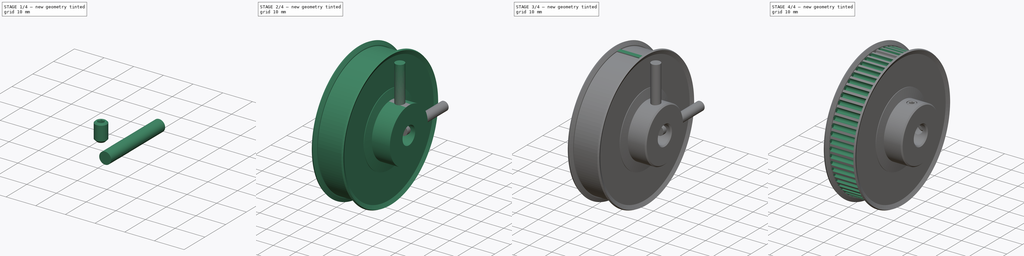
[diagram: build sequence overview — one tinted view per stage of 4, left to right]
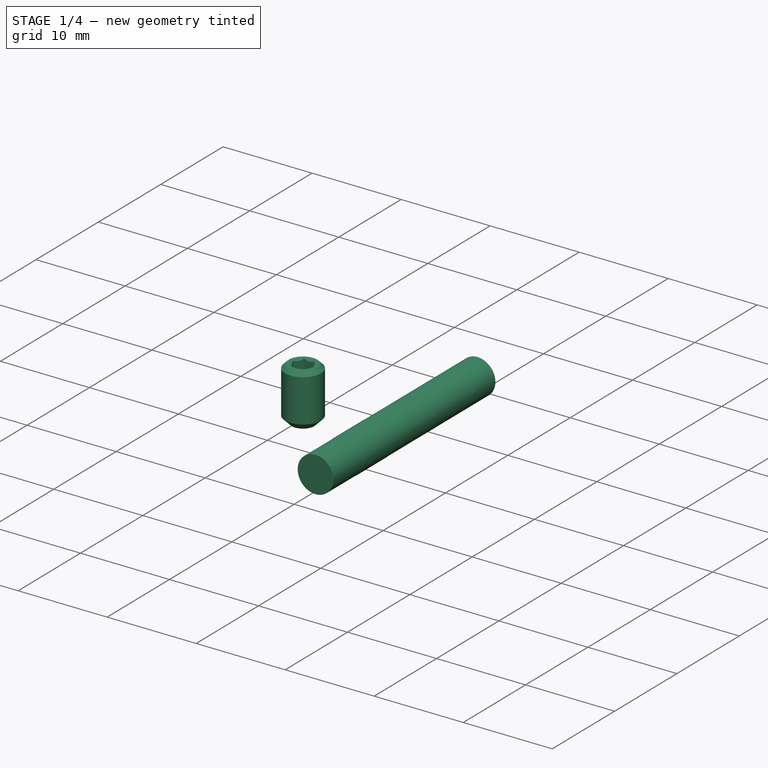
[diagram: stage 1 of 4 — iso view after this stage's code; geometry added in this stage tinted green]
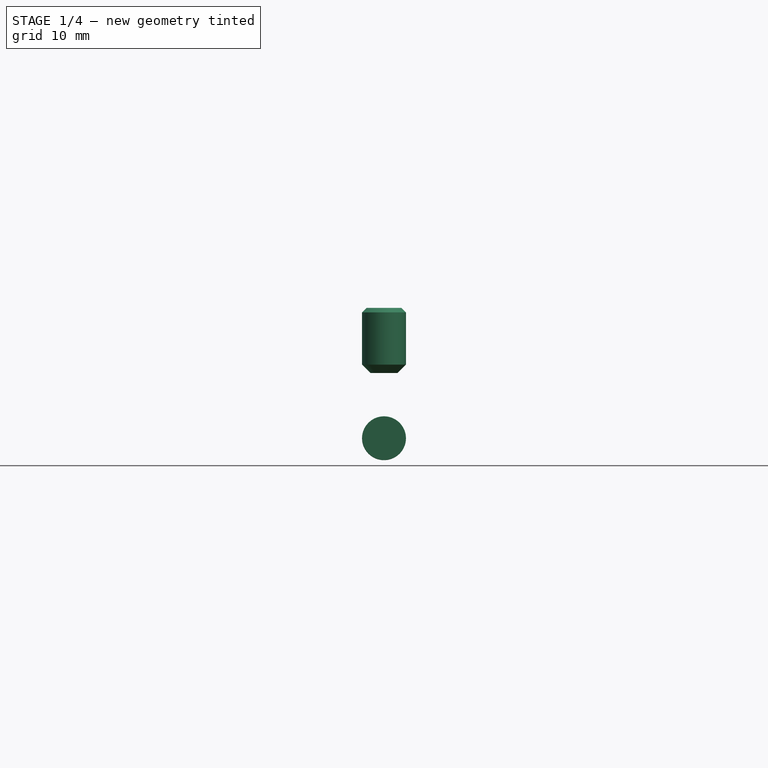
[diagram: stage 1 of 4 — front view after this stage's code; geometry added in this stage tinted green]
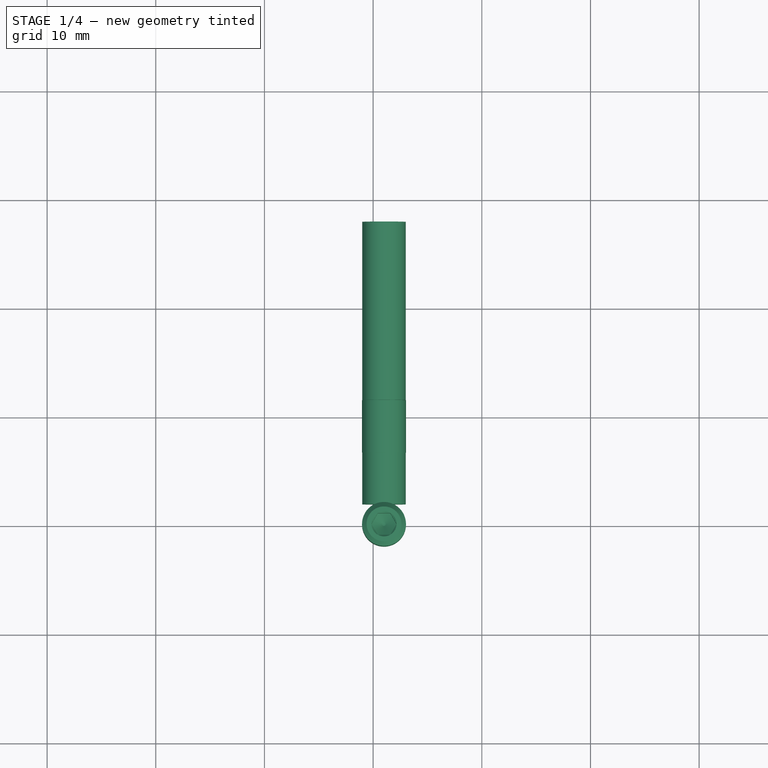
[diagram: stage 1 of 4 — top view after this stage's code; geometry added in this stage tinted green]
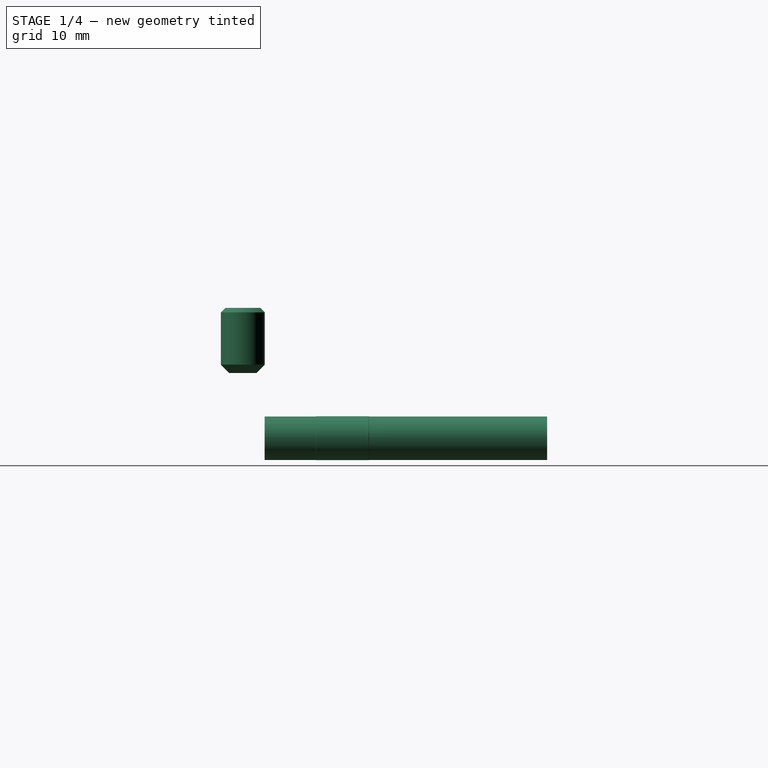
[diagram: stage 1 of 4 — right view after this stage's code; geometry added in this stage tinted green]
FCSTD DOCUMENT  (FreeCAD 0.21R33771 (Git))
Label: HTD 3M 60 Tooth Pulley 8mm Bore
License: All rights reserved
LicenseURL: http://en.wikipedia.org/wiki/All_rights_reserved
objects: Part::FeaturePython×3, Sketcher::SketchObject×2, PartDesign::Body×2, Part::Cut×2, Part::Cylinder×2, PartDesign::Revolution×1, PartDesign::Pad×1, PartDesign::Chamfer×1, Part::MultiFuse×1
note: 18 computed .brp shape members not serialized (recipe doc carries the construction recipe); baked Part::Feature solids carry a one-line shape summary decoded from their .brp

FEATURE [Part::Cylinder] Cylinder001
  Angle = 360
  AttacherType = Attacher::AttachEngine3D
  FirstAngle = 0
  Height = 26
  Placement = pos=(11,2,0) rot=(-1,0,0;1.5708rad)
  Radius = 2
  SecondAngle = 0
FEATURE [Part::FeaturePython] Screw  label="M4x6-Screw"  # Fasteners workbench fastener (typed FeaturePython)
  Placement = pos=(11,0,12) rot=(0,0,1;0rad)
  diameter = 7
  invert = false
  leftHanded = false
  length = 2
  lengthCustom = 6
  matchOuter = false
  offset = 0
  thread = false
  type = 28
FEATURE [Part::FeaturePython] Screw001  label="M4x6-Screw001"  # Fasteners workbench fastener (typed FeaturePython)
  Placement = pos=(11,12,0) rot=(-1,0,0;1.5708rad)
  diameter = 7
  invert = false
  leftHanded = false
  length = 2
  lengthCustom = 6
  matchOuter = false
  offset = 0
  thread = false
  type = 28
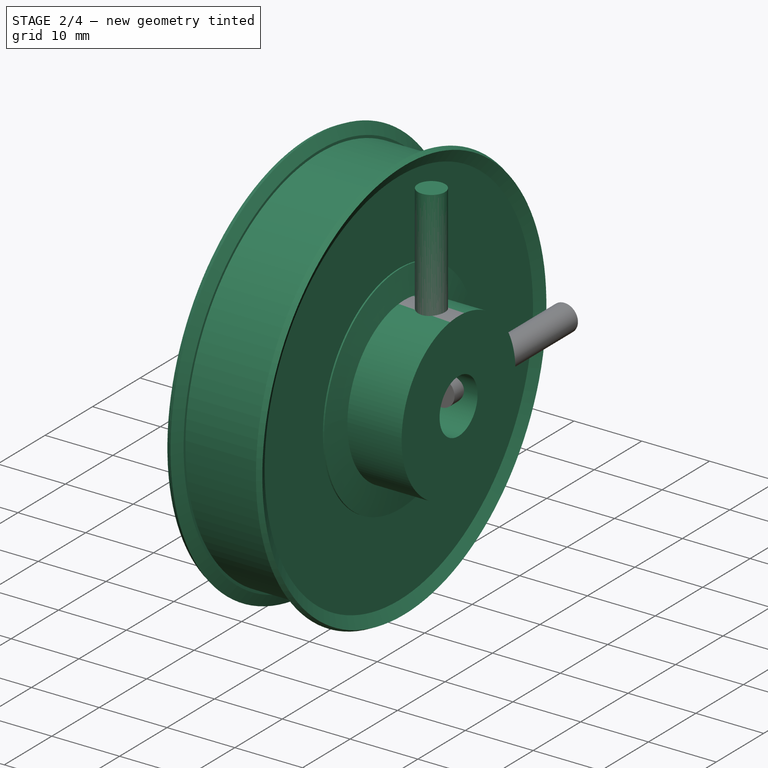
[diagram: stage 2 of 4 — iso view after this stage's code; geometry added in this stage tinted green]
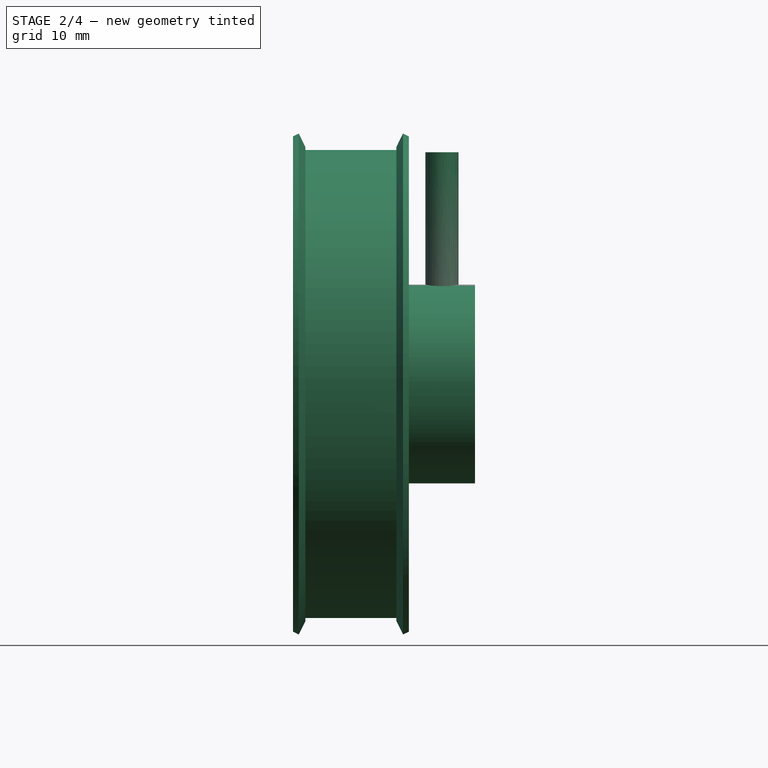
[diagram: stage 2 of 4 — front view after this stage's code; geometry added in this stage tinted green]
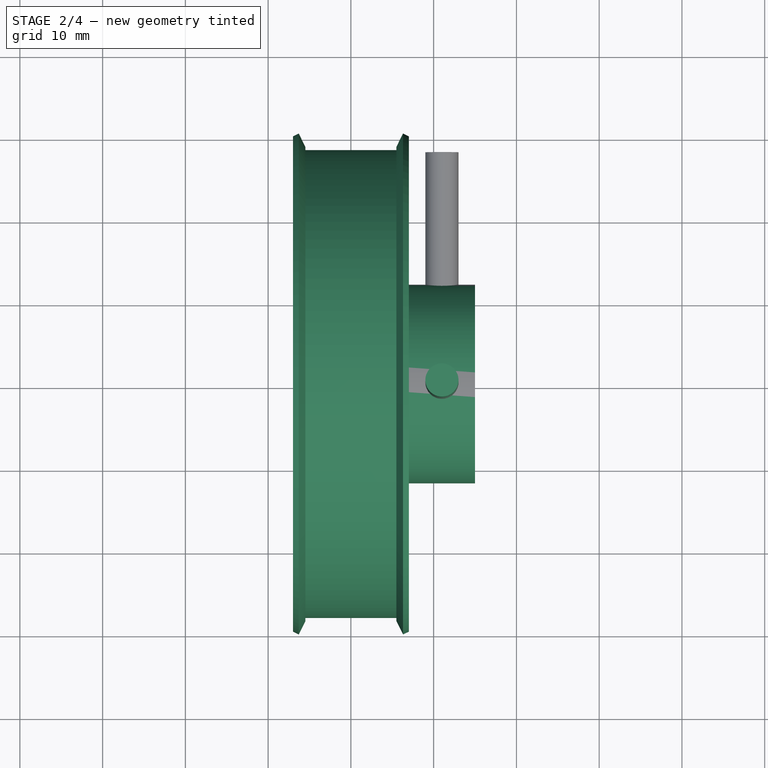
[diagram: stage 2 of 4 — top view after this stage's code; geometry added in this stage tinted green]
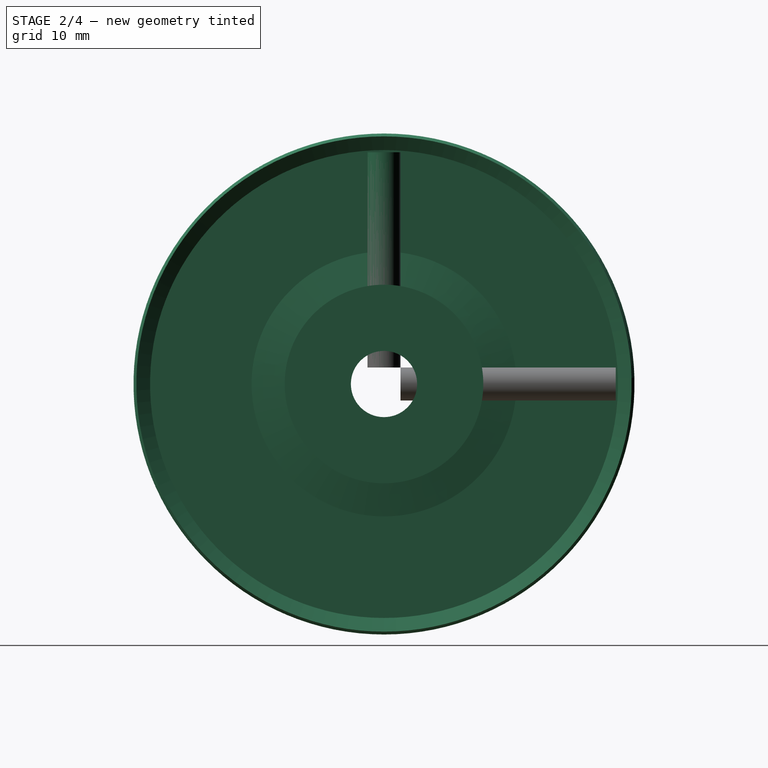
[diagram: stage 2 of 4 — right view after this stage's code; geometry added in this stage tinted green]
FEATURE [Sketcher::SketchObject] Sketch
  FullyConstrained = true
  MapMode = 5
  Placement = pos=(0,0,0) rot=(1,0,0;1.5708rad)
  Support = -> [XZ_Plane]
  sketch-geometry (20):
    g0: LineSegment StartX=-7 StartY=4 StartZ=0 EndX=15 EndY=4 EndZ=0
    g1: LineSegment StartX=7 StartY=29.9211 StartZ=0 EndX=6.3 EndY=30.267 EndZ=0
    g2: LineSegment StartX=5.5 StartY=28.267 StartZ=0 EndX=-5.5 EndY=28.267 EndZ=0
    g3: LineSegment StartX=-6.3 StartY=30.267 StartZ=0 EndX=-7 EndY=29.9211 EndZ=0
    g4: LineSegment StartX=7 StartY=29.9211 StartZ=0 EndX=6.18265 EndY=28.267 EndZ=0
    g5: LineSegment StartX=6.18265 StartY=28.267 StartZ=0 EndX=6.18265 EndY=16 EndZ=0
    g6: LineSegment StartX=6.18265 StartY=16 StartZ=0 EndX=6.38265 EndY=16 EndZ=0
    g7: LineSegment StartX=6.38265 StartY=16 StartZ=0 EndX=7 EndY=12 EndZ=0
    g8: LineSegment StartX=-7 StartY=29.9211 StartZ=0 EndX=-6.18265 EndY=28.267 EndZ=0
    g9: LineSegment StartX=-6.18265 StartY=28.267 StartZ=0 EndX=-6.18265 EndY=16 EndZ=0
    g10: LineSegment StartX=-6.18265 StartY=16 StartZ=0 EndX=-6.38265 EndY=16 EndZ=0
    g11: LineSegment StartX=-6.38265 StartY=16 StartZ=0 EndX=-7 EndY=12 EndZ=0
    g12: LineSegment StartX=-7 StartY=12 StartZ=0 EndX=-7 EndY=4 EndZ=0
    g13: LineSegment StartX=-5.5 StartY=28.648 StartZ=0 EndX=5.5 EndY=28.648 EndZ=0
    g14: LineSegment StartX=5.5 StartY=28.267 StartZ=0 EndX=5.5 EndY=28.648 EndZ=0
    g15: LineSegment StartX=5.5 StartY=28.648 StartZ=0 EndX=6.3 EndY=30.267 EndZ=0
    g16: LineSegment StartX=-6.3 StartY=30.267 StartZ=0 EndX=-5.5 EndY=28.648 EndZ=0
    g17: LineSegment StartX=-5.5 StartY=28.648 StartZ=0 EndX=-5.5 EndY=28.267 EndZ=0
    g18: LineSegment StartX=7 StartY=12 StartZ=0 EndX=15 EndY=12 EndZ=0
    g19: LineSegment StartX=15 StartY=12 StartZ=0 EndX=15 EndY=4 EndZ=0
  constraints (56):
    c: Symmetric(g2,g2,g-2)
    c: Symmetric(g3,g1,g-2)
    c: Equal(g3,g1)
    c: DistanceY(g-1,g0) = 4
    c: DistanceX(g2,g2) = 11
    c: DistanceX(g3,g3) = 0.7
    c: Coincident(g4,g1)
    c: Coincident(g5,g4)
    c: Vertical(g5)
    c: Coincident(g6,g5)
    c: Horizontal(g6)
    c: Coincident(g7,g6)
    c: Coincident(g8,g3)
    c: Coincident(g8,g9)
    c: Vertical(g9)
    c: Coincident(g9,g10)
    c: Horizontal(g10)
    c: Coincident(g10,g11)
    c: Coincident(g11,g12)
    c: Coincident(g12,g0)
    c: Vertical(g12)
    c: Equal(g9,g5)
    c: Equal(g10,g6)
    c: Equal(g8,g4)
    c: DistanceX(g10,g10) = 0.2
    c: DistanceY(g11,g10) = 4
    c: Horizontal(g13)
    c: DistanceY(g2,g13) = 0.381
    c: Coincident(g14,g2)
    c: Vertical(g14)
    c: Coincident(g15,g14)
    c: Coincident(g15,g1)
    c: Parallel(g15,g4)
    c: Coincident(g13,g14)
    c: Coincident(g16,g3)
    c: Coincident(g17,g16)
    c: Coincident(g17,g2)
    c: Coincident(g13,g16)
    c: Vertical(g17)
    c: Parallel(g16,g8)
    c: Perpendicular(g16,g3)
    c: Perpendicular(g1,g15)
    c: DistanceY(g4,g1) = 2
    c: PointOnObject(g4,g2)
    c: DistanceY(g-1,g11) = 12
    c: Horizontal(g18)
    c: Coincident(g18,g19)
    c: Vertical(g19)
    c: Coincident(g18,g7)
    c: Symmetric(g11,g7,g-2)
    c: Horizontal(g0)
    c: Coincident(g0,g19)
    c: DistanceX(g7,g0) = 8
    c: DistanceX(g3,g16) = 1.5
    c: Vertical(g3,g11)
    c: DistanceY(g-1,g16) = 28.648
FEATURE [PartDesign::Revolution] Revolution
  AllowMultiFace = false
  Angle = 360
  Axis = (1,0,0)
  Base = (0,0,0)
  Placement = pos=(0,0,0) rot=(1,0,0;1.5708rad)
  Profile = -> Sketch
  ReferenceAxis = -> Sketch [H_Axis]
FEATURE [Part::Cylinder] Cylinder
  Angle = 360
  AttacherType = Attacher::AttachEngine3D
  FirstAngle = 0
  Height = 26
  Placement = pos=(11,0,2) rot=(0,0,1;0rad)
  Radius = 2
  SecondAngle = 0
FEATURE [Part::MultiFuse] Fusion
  Shapes = -> [Cylinder,Cylinder001]
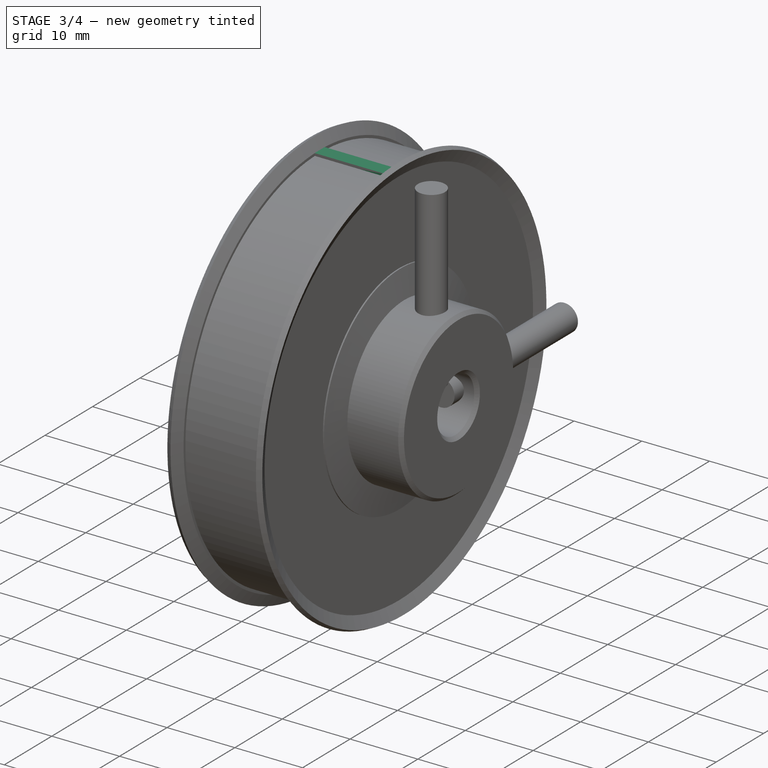
[diagram: stage 3 of 4 — iso view after this stage's code; geometry added in this stage tinted green]
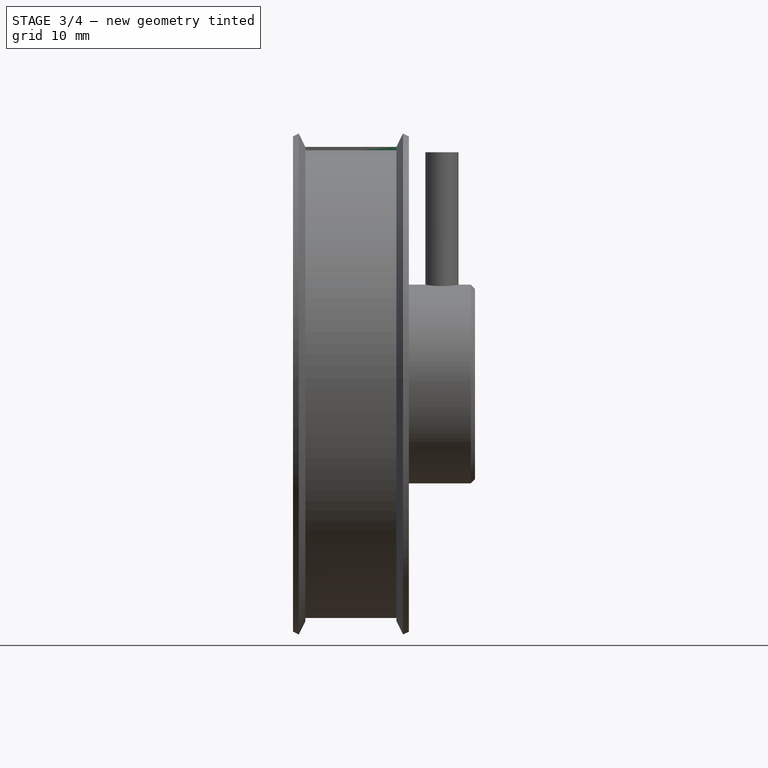
[diagram: stage 3 of 4 — front view after this stage's code; geometry added in this stage tinted green]
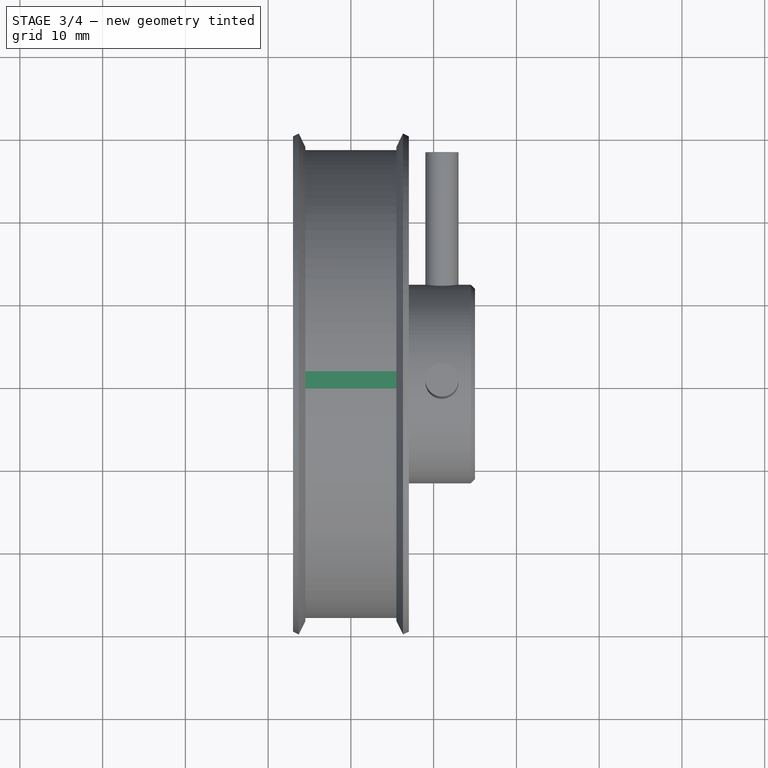
[diagram: stage 3 of 4 — top view after this stage's code; geometry added in this stage tinted green]
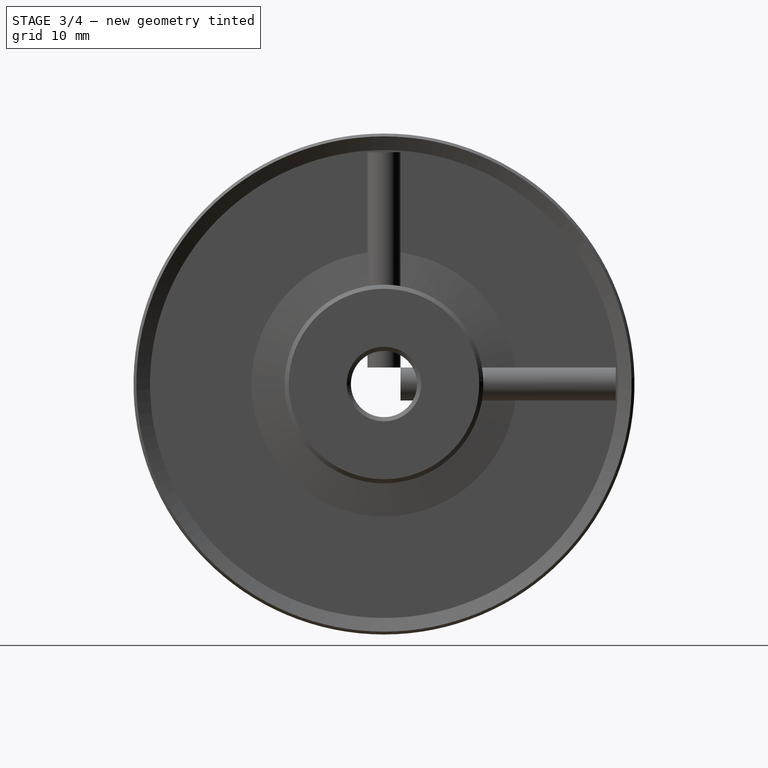
[diagram: stage 3 of 4 — right view after this stage's code; geometry added in this stage tinted green]
FEATURE [Sketcher::SketchObject] Sketch001
  FullyConstrained = true
  MapMode = 5
  Placement = pos=(0,0,0) rot=(0.57735,0.57735,0.57735;2.0944rad)
  Support = -> [YZ_Plane001]
  sketch-geometry (5):
    g0: ArcOfCircle CenterX=0 CenterY=27.773 CenterZ=0 NormalX=0 NormalY=0 NormalZ=1 AngleXU=0 Radius=0.91 StartAngle=3.28995 EndAngle=6.13483
    g1: LineSegment StartX=-0.900004 StartY=27.6385 StartZ=0 EndX=-1.05088 EndY=28.648 EndZ=0
    g2: LineSegment StartX=-1.05088 StartY=28.648 StartZ=0 EndX=1.05088 EndY=28.648 EndZ=0
    g3: LineSegment StartX=1.05088 StartY=28.648 StartZ=0 EndX=0.900004 EndY=27.6385 EndZ=0
    g4: LineSegment StartX=0 StartY=26.863 StartZ=0 EndX=0 EndY=28.648 EndZ=0
  constraints (14):
    c: PointOnObject(g0,g-2)
    c: Coincident(g2,g1)
    c: Coincident(g3,g2)
    c: Tangent(g0,g3) = 1.5708
    c: Tangent(g0,g1) = 1.5708
    c: Symmetric(g1,g2,g-2)
    c: Angle(g3,g1) = 0.296706
    c: Radius(g0) = 0.91
    c: PointOnObject(g4,g0)
    c: Vertical(g4)
    c: PointOnObject(g4,g-2)
    c: DistanceY(g4,g4) = 1.785
    c: DistanceY(g-1,g4) = 28.648
    c: PointOnObject(g4,g2)
FEATURE [PartDesign::Pad] Pad
  AllowMultiFace = false
  Direction = (1,-2e-16,3e-16)
  Length = 11
  Length2 = 100
  Midplane = true
  Placement = pos=(0,0,0) rot=(0.57735,0.57735,0.57735;2.0944rad)
  Profile = -> Sketch001
  Type = 0
FEATURE [PartDesign::Chamfer] Chamfer
  Angle = 45
  Base = -> Revolution [Edge11,Edge12,Edge14]
  BaseFeature = -> Revolution
  ChamferType = 0
  FlipDirection = false
  Placement = pos=(0,0,0) rot=(1,0,0;1.5708rad)
  Size = 0.5
  Size2 = 1
  SupportTransform = false
  UseAllEdges = false
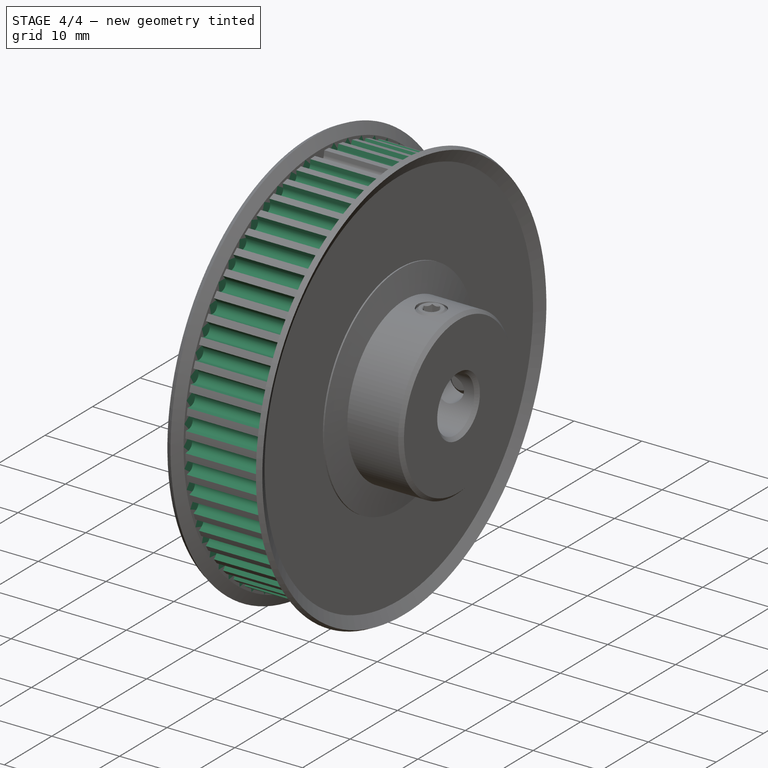
[diagram: stage 4 of 4 — iso view after this stage's code; geometry added in this stage tinted green]
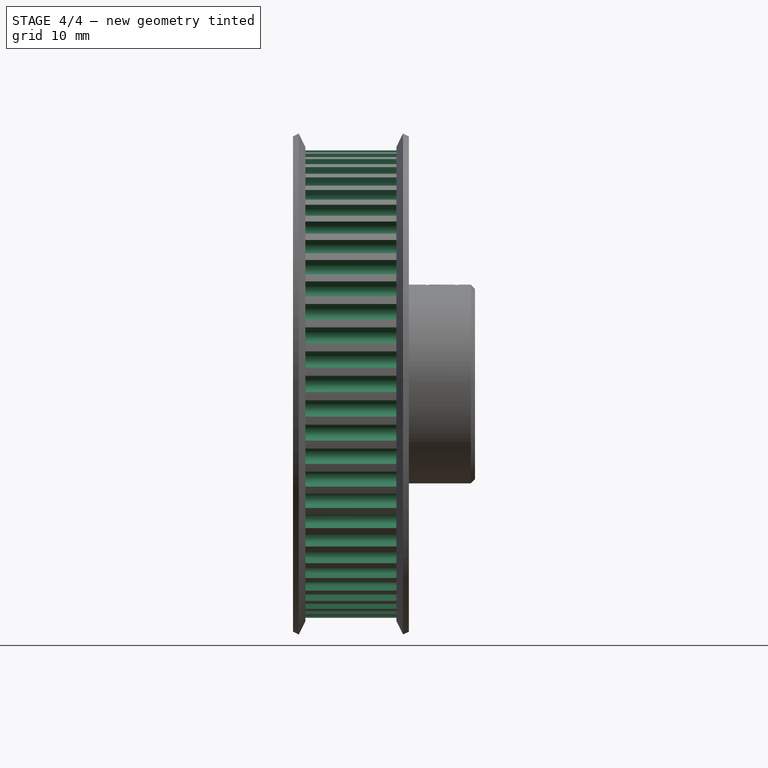
[diagram: stage 4 of 4 — front view after this stage's code; geometry added in this stage tinted green]
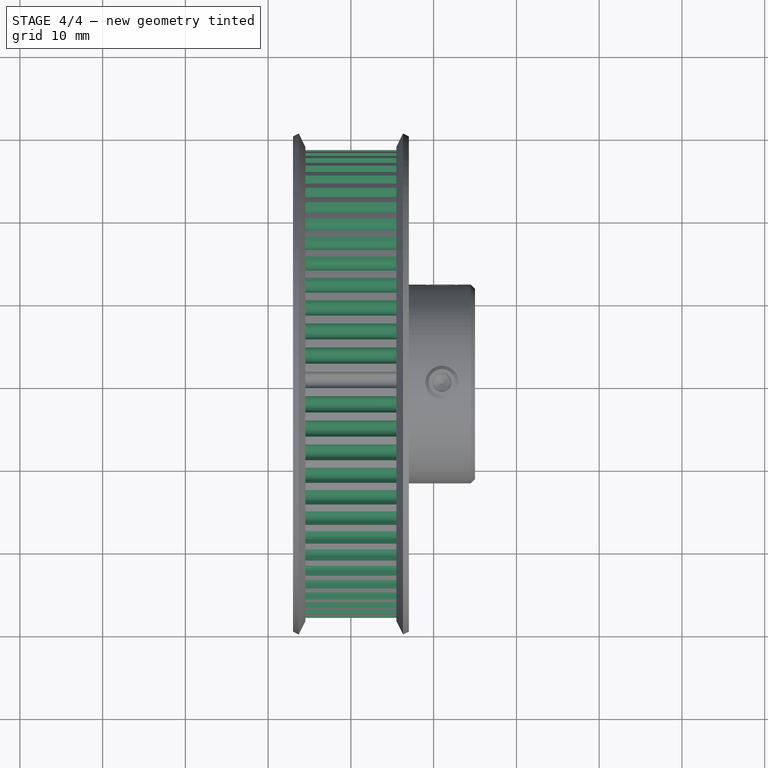
[diagram: stage 4 of 4 — top view after this stage's code; geometry added in this stage tinted green]
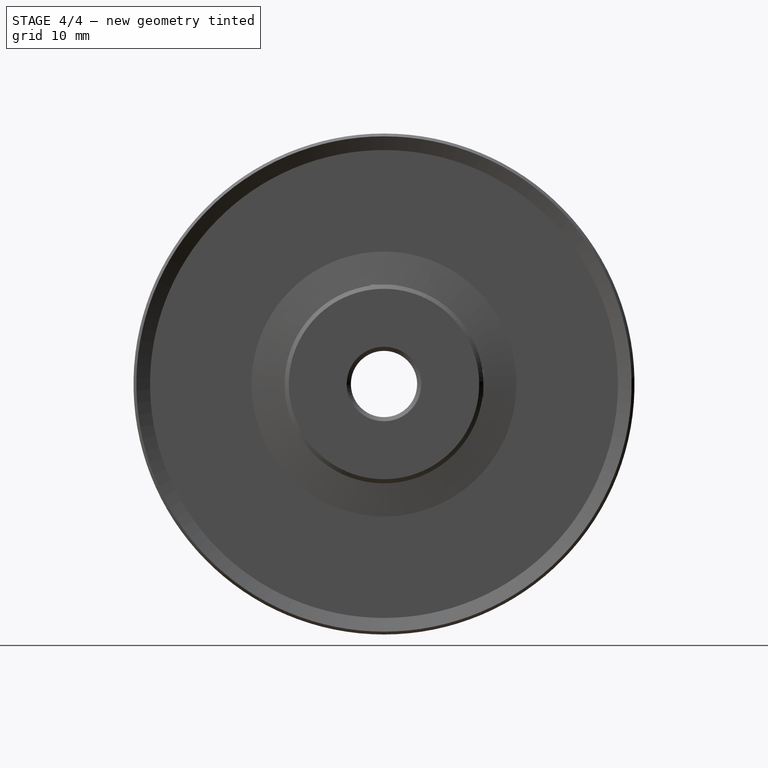
[diagram: stage 4 of 4 — right view after this stage's code; geometry added in this stage tinted green]
FEATURE [PartDesign::Body] Body001
  Group = -> [Sketch001,Pad]
  Origin = -> Origin001
  Tip = -> Pad
FEATURE [Part::FeaturePython] Array  # Draft array (typed FeaturePython)
  Angle = 360
  ArrayType = 1
  Axis = (1,0,0)
  Base = -> Body001
  Center = (0,0,0)
  Count = 60
  Fuse = false
  IntervalAxis = (0,0,0)
  IntervalX = (1,0,0)
  IntervalY = (0,1,0)
  IntervalZ = (0,0,1)
  NumberPolar = 60
  NumberX = 2
  NumberY = 2
  NumberZ = 1
FEATURE [PartDesign::Body] Body
  Group = -> [Sketch,Revolution,Chamfer]
  Origin = -> Origin
  Tip = -> Chamfer
FEATURE [Part::Cut] Cut
  Base = -> Body
  Tool = -> Array
FEATURE [Part::Cut] Cut001
  Base = -> Cut
  Refine = true
  Tool = -> Fusion
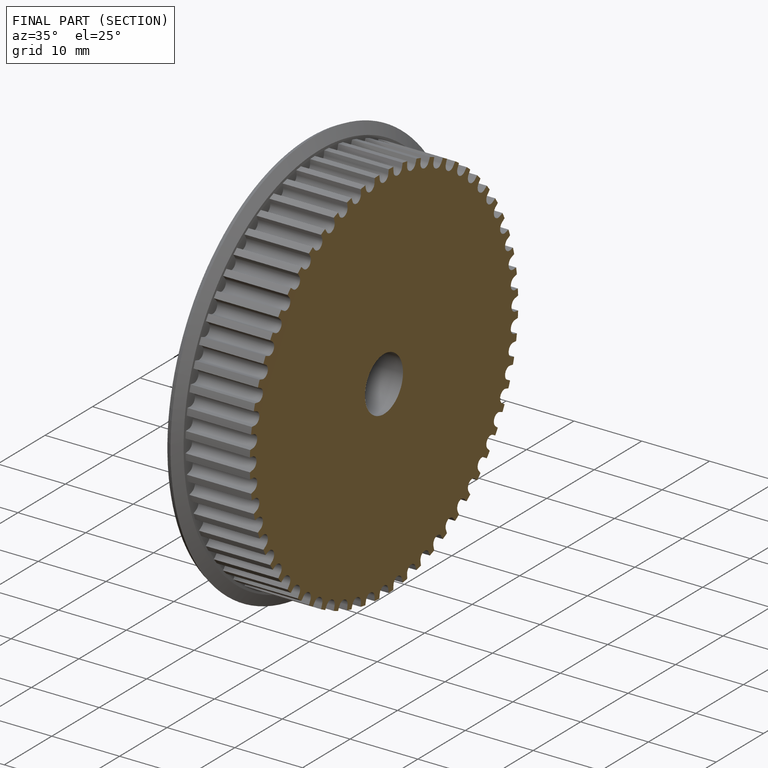
[diagram: finished part — half-section view (interior)]
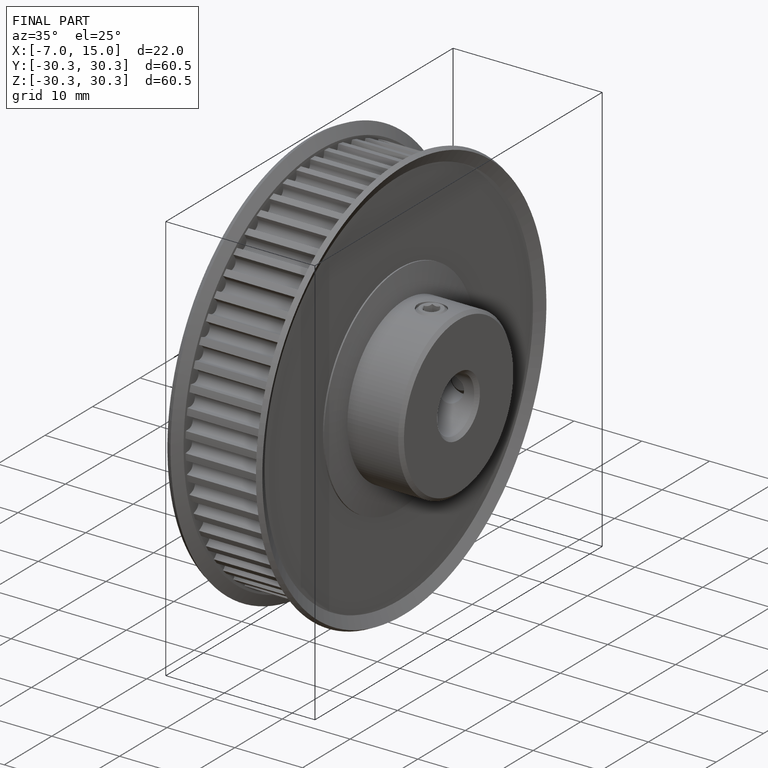
[diagram: finished part — iso view with bounding-box wireframe]
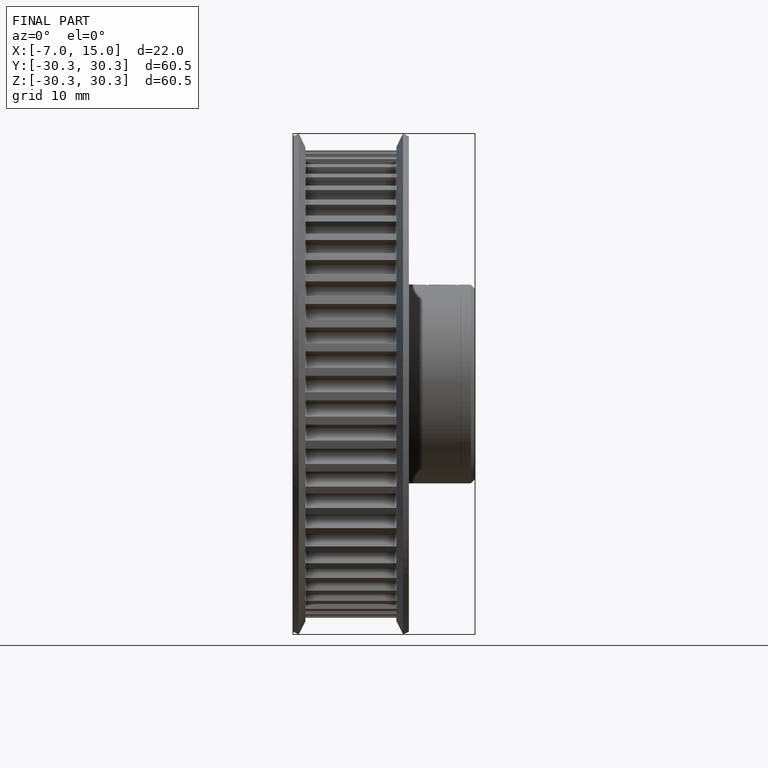
[diagram: finished part — front view with bounding-box wireframe]
